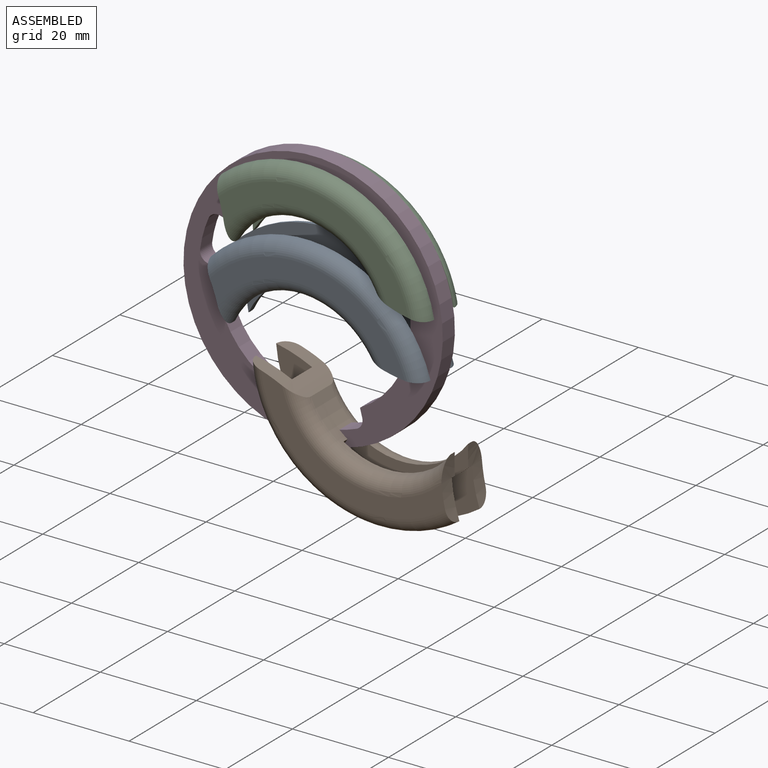
[diagram: assembled view]
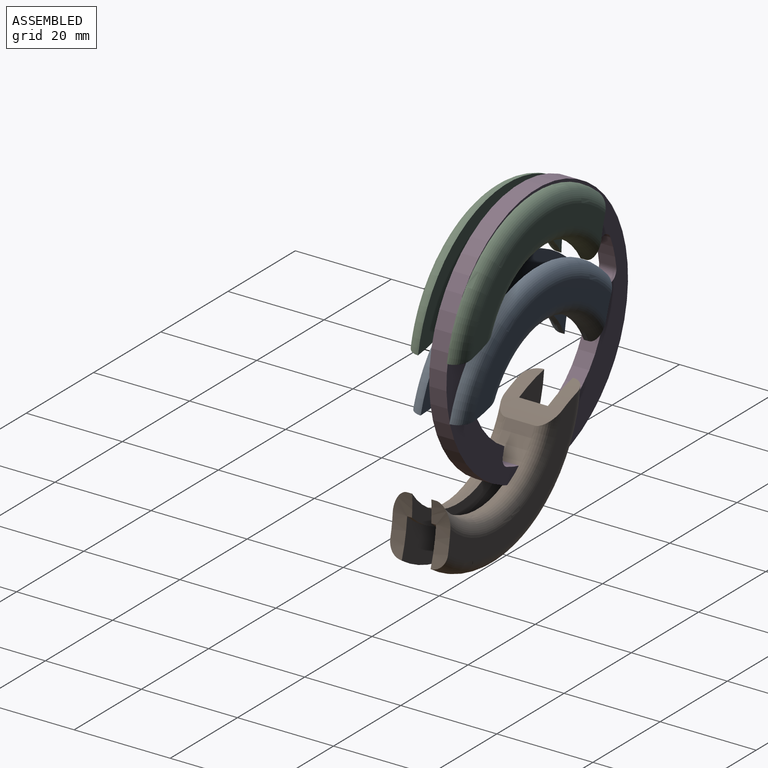
[diagram: assembled view, second angle]
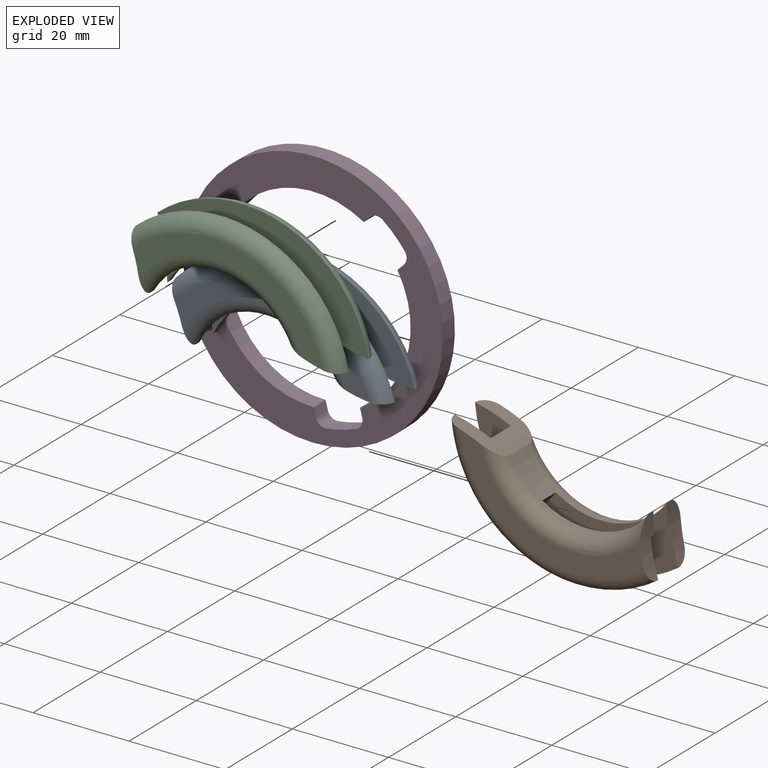
[diagram: exploded view]
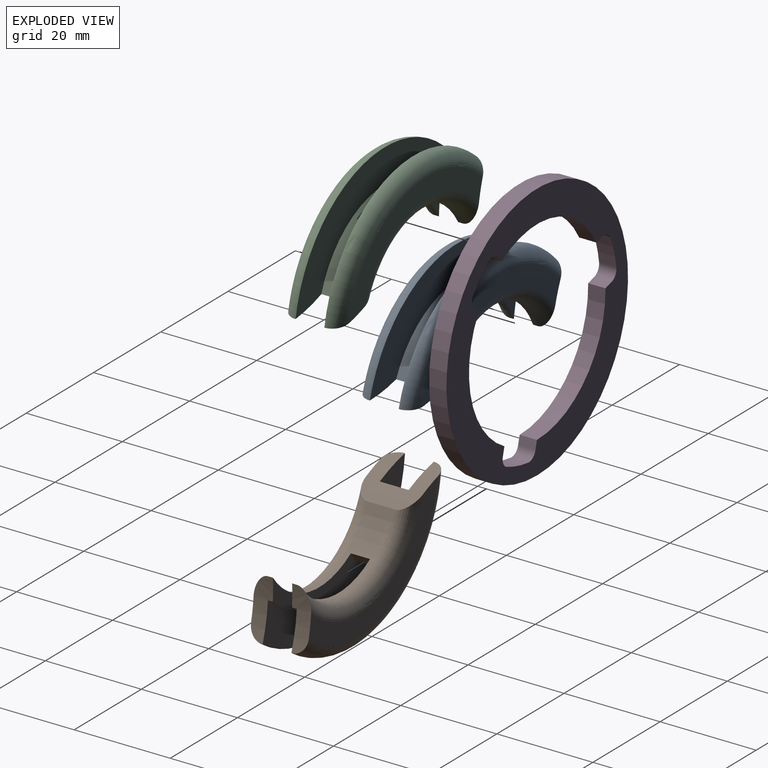
[diagram: exploded view, second angle]
ASSEMBLY  parts=4 mates=2
PART A: 16 faces, bbox 28.5x12x50.5 mm
  f0: cylinder r=20mm len=33.09mm, axis (0,1,0), area 142.1mm2, adj f1,f3,f4,f5,f7,f8,f9,f11
  f1: cylinder r=10mm len=4mm, axis (0,1,0), area 12.1mm2, adj f0,f2,f7,f11
  f2: cylinder r=17mm len=26.09mm, axis (0,1,0), area 109.6mm2, adj f1,f3,f5,f7,f9,f11,f12,f15
  f3: cylinder r=32mm len=12.09mm, axis (0,1,0), area 90.9mm2, adj f0,f2,f4,f6,f8,f10,f12,f13
  f4: plane 46.28x22.57mm, normal (0,-1,0), area 344.5mm2, adj f0,f3,f5,f14
  f5: cylinder r=32mm len=9.29mm, axis (0,-1,0), area 36.5mm2, adj f0,f2,f4,f6,f7,f14,f15
  f6: plane 40.84x19.57mm, normal (0,1,0), area 184.3mm2, adj f3,f5,f14,f15
  f7: plane 19.87x19.3mm, normal (0,-1,0), area 79.3mm2, adj f0,f1,f2,f5
  f8: plane 46.28x22.57mm, normal (0,1,0), area 344.5mm2, adj f0,f3,f9,f13
  f9: cylinder r=32mm len=9.29mm, axis (0,1,0), area 36.5mm2, adj f0,f2,f8,f10,f11,f12,f13
  f10: plane 40.84x19.57mm, normal (0,-1,0), area 184.3mm2, adj f3,f9,f12,f13
  f11: plane 19.87x19.3mm, normal (0,1,0), area 79.3mm2, adj f0,f1,f2,f9
  f12: torus R=20mm, axis (0,1,0), area 178.5mm2, adj f2,f3,f9,f10
  f13: torus R=24mm, axis (0,1,0), area 255.7mm2, adj f3,f8,f9,f10
  f14: torus R=24mm, axis (0,-1,0), area 255.7mm2, adj f3,f4,f5,f6
  f15: torus R=20mm, axis (0,-1,0), area 178.5mm2, adj f2,f3,f5,f6
PART B: same geometry as A
PART C: same geometry as A
PART D: 21 faces, bbox 54x3.6x54 mm
  f0: plane 54x54mm, normal (0,-1,0), area 894.9mm2, adj f2,f3,f4,f5,f6,f7,f8,f9
  f1: plane 54x54mm, normal (0,1,0), area 894.9mm2, adj f2,f3,f4,f5,f6,f7,f8,f9
  f2: cylinder r=20.3mm len=28.15mm, axis (0,1,0), area 116.7mm2, adj f0,f1,f9,f13
  f3: cylinder r=20.3mm len=28.02mm, axis (0,1,0), area 116.7mm2, adj f0,f1,f12,f14
  f4: cylinder r=27mm len=54mm, axis (0,1,0), area 610.7mm2, adj f0,f1
  f5: cylinder r=20.3mm len=20.75mm, axis (0,1,0), area 116.7mm2, adj f0,f1,f6,f10
  f6: plane 3.6x1.8mm, normal (0.97,0,0.25), area 6.7mm2, adj f0,f1,f5,f16
  f7: cylinder r=23.74mm len=6.34mm, axis (0,-1,0), area 23.7mm2, adj f0,f1,f15,f16
  f8: cylinder r=23.74mm len=4.68mm, axis (0,-1,0), area 23.7mm2, adj f0,f1,f17,f18
  f9: plane 3.6x1.33mm, normal (0.7,0,-0.71), area 6.7mm2, adj f0,f1,f2,f17
  f10: plane 3.6x1.79mm, normal (0.27,0,0.96), area 6.7mm2, adj f0,f1,f5,f20
  f11: cylinder r=23.74mm len=6.31mm, axis (0,-1,0), area 23.7mm2, adj f0,f1,f19,f20
  f12: plane 3.6x1.33mm, normal (-0.7,0,0.71), area 6.7mm2, adj f0,f1,f3,f18
  f13: plane 3.6x1.79mm, normal (-0.27,0,-0.96), area 6.7mm2, adj f0,f1,f2,f19
  f14: plane 3.6x1.8mm, normal (-0.97,0,-0.25), area 6.7mm2, adj f0,f1,f3,f15
  f15: cylinder r=2mm len=3.6mm, axis (0,-1,0), area 10.3mm2, adj f0,f1,f7,f14
  f16: cylinder r=2mm len=3.6mm, axis (0,-1,0), area 10.3mm2, adj f0,f1,f6,f7
  f17: cylinder r=2mm len=3.6mm, axis (0,-1,0), area 10.3mm2, adj f0,f1,f8,f9
  f18: cylinder r=2mm len=3.6mm, axis (0,-1,0), area 10.3mm2, adj f0,f1,f8,f12
  f19: cylinder r=2mm len=3.6mm, axis (0,-1,0), area 10.3mm2, adj f0,f1,f11,f13
  f20: cylinder r=2mm len=3.6mm, axis (0,-1,0), area 10.3mm2, adj f0,f1,f10,f11
PLACE A rot(axis=(0,1,0),112.5deg) t=(-49.03,-0.01,-6.8)mm
PLACE B rot(axis=(0,-1,0),56.6deg) t=(-32.63,0.19,-2.29)mm
PLACE C rot(axis=(0,1,0),118.1deg) t=(-48.86,-0.01,7.4)mm
PLACE D t=(-49.17,0.19,7.92)mm fixed
MATE planar C.f4 <-> D.f11  axis (0,-1,0) through (-43.22,-0.01,26.13)mm
MATE planar D.f11 <-> A.f4  axis (0,1,0) through (-49.17,-0.01,7.92)mm
